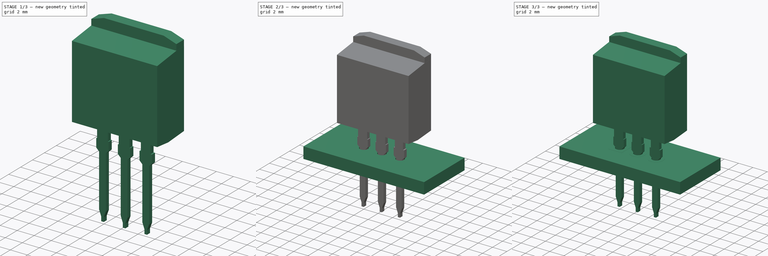
[diagram: build sequence overview — one tinted view per stage of 3, left to right]
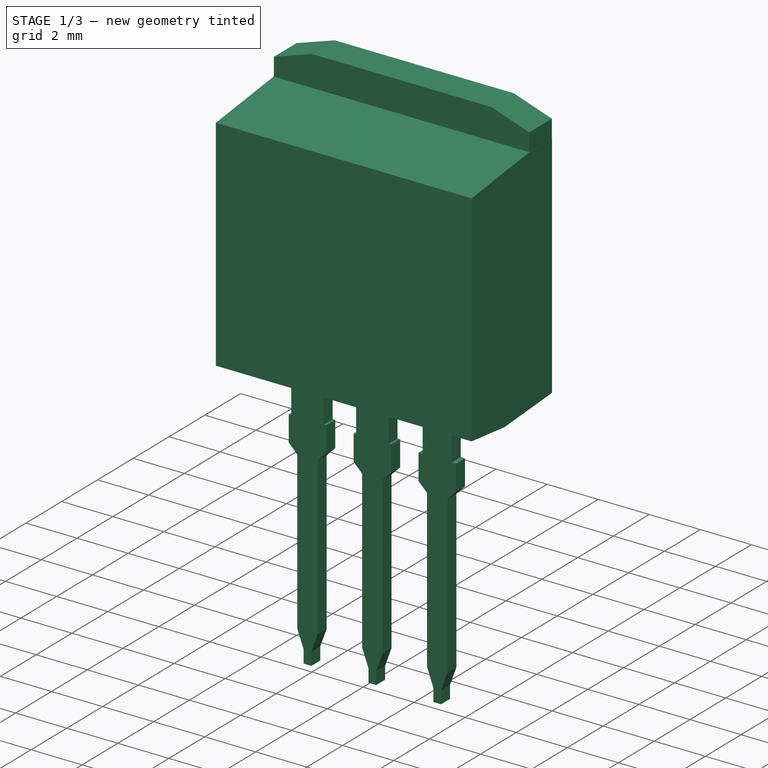
[diagram: stage 1 of 3 — iso view after this stage's code; geometry added in this stage tinted green]
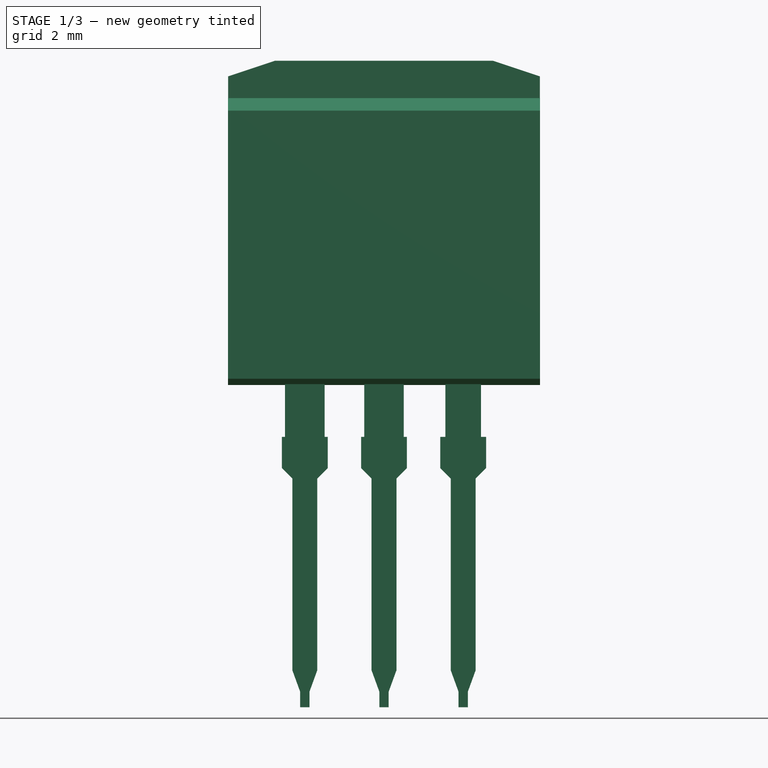
[diagram: stage 1 of 3 — front view after this stage's code; geometry added in this stage tinted green]
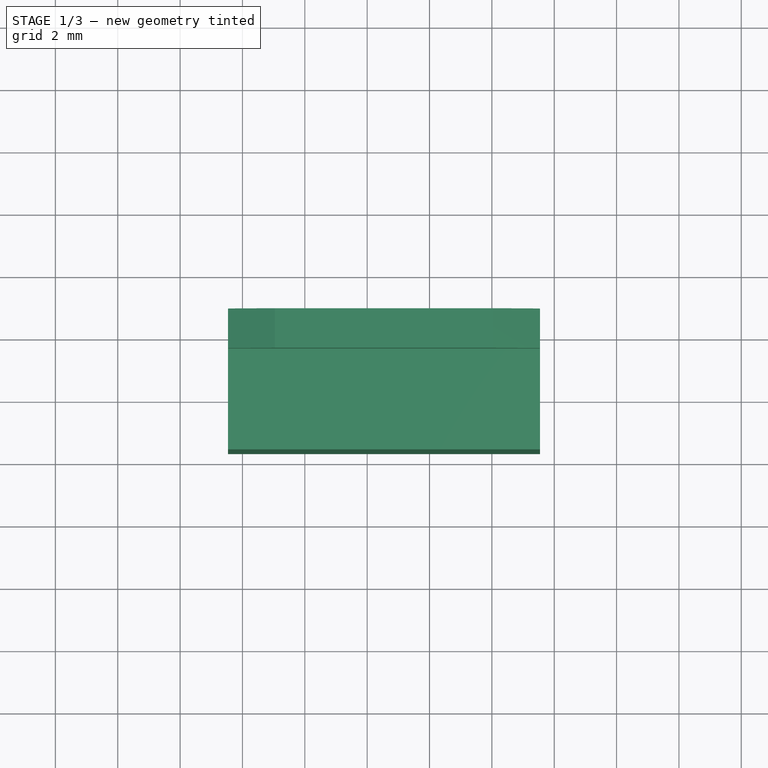
[diagram: stage 1 of 3 — top view after this stage's code; geometry added in this stage tinted green]
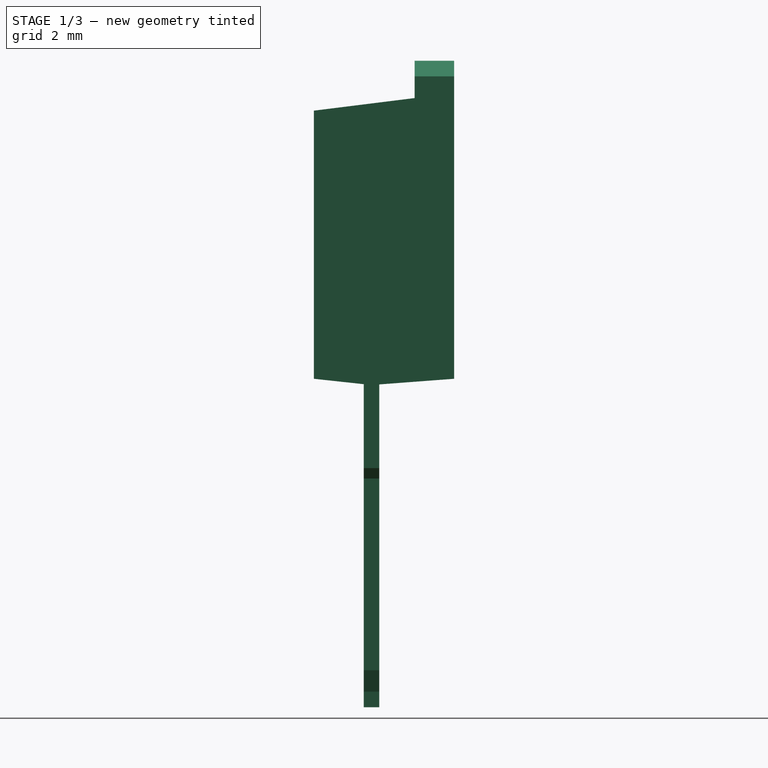
[diagram: stage 1 of 3 — right view after this stage's code; geometry added in this stage tinted green]
FCSTD DOCUMENT  (FreeCAD 0.16R6712 (Git))
Label: TO-262-3_Vertical
License: All rights reserved
LicenseURL: http://en.wikipedia.org/wiki/All_rights_reserved
objects: Part::FeaturePython×7, Sketcher::SketchObject×3, PartDesign::Pad×3, App::DocumentObjectGroup×1, Part::MultiFuse×1
note: 17 computed .brp shape members not serialized (recipe doc carries the construction recipe); baked Part::Feature solids carry a one-line shape summary decoded from their .brp

FEATURE [Sketcher::SketchObject] Sketch
  Placement = pos=(0,0,0) rot=(1,0,0;1.5708rad)
  sketch-geometry (77):
    g0: LineSegment StartX=-0.735 StartY=1.335 StartZ=0 EndX=-0.635 EndY=1.335 EndZ=0
    g1: LineSegment StartX=0.735 StartY=1.335 StartZ=0 EndX=0.735 EndY=0.335 EndZ=0
    g2: LineSegment StartX=-0.735 StartY=0.335 StartZ=0 EndX=-0.735 EndY=1.335 EndZ=0
    g3: LineSegment StartX=0.4 StartY=0 StartZ=0 EndX=0.4 EndY=-6.14813 EndZ=0
    g4: LineSegment StartX=-0.4 StartY=-6.14813 StartZ=0 EndX=-0.4 EndY=0 EndZ=0
    g5: LineSegment StartX=0.635 StartY=1.335 StartZ=0 EndX=0.635 EndY=4.335 EndZ=0
    g6: LineSegment StartX=0.635 StartY=4.335 StartZ=0 EndX=-0.635 EndY=4.335 EndZ=0
    g7: LineSegment StartX=-0.635 StartY=4.335 StartZ=0 EndX=-0.635 EndY=1.335 EndZ=0
    g8: LineSegment StartX=0.635 StartY=1.335 StartZ=0 EndX=0.735 EndY=1.335 EndZ=0
    g9: LineSegment StartX=0.15 StartY=-6.835 StartZ=0 EndX=0.15 EndY=-7.335 EndZ=0
    g10: LineSegment StartX=0.15 StartY=-7.335 StartZ=0 EndX=-0.15 EndY=-7.335 EndZ=0
    g11: LineSegment StartX=-0.15 StartY=-7.335 StartZ=0 EndX=-0.15 EndY=-6.835 EndZ=0
    g12: LineSegment StartX=-0.4 StartY=-6.14813 StartZ=0 EndX=-0.15 EndY=-6.835 EndZ=0
    g13: LineSegment StartX=0.4 StartY=-6.14813 StartZ=0 EndX=0.15 EndY=-6.835 EndZ=0
    g14: LineSegment [constr] StartX=0 StartY=-7.335 StartZ=0 EndX=0 EndY=4.335 EndZ=0
    g15: LineSegment [constr] StartX=-0.4 StartY=-6.14813 StartZ=0 EndX=0.4 EndY=-6.14813 EndZ=0
    g16: LineSegment [constr] StartX=-0.15 StartY=-6.835 StartZ=0 EndX=0.15 EndY=-6.835 EndZ=0
    g17: LineSegment [constr] StartX=-0.4 StartY=0 StartZ=0 EndX=0.4 EndY=0 EndZ=0
    g18: LineSegment [constr] StartX=-0.635 StartY=1.335 StartZ=0 EndX=0.635 EndY=1.335 EndZ=0
    g19: GeomPoint [constr] X=0 Y=1.335 Z=0
    g20: GeomPoint [constr] X=0 Y=0 Z=0
    g21: GeomPoint [constr] X=0 Y=-6.14813 Z=0
    g22: LineSegment [constr] StartX=0 StartY=-7.335 StartZ=0 EndX=2.54 EndY=-7.335 EndZ=0
    g23: LineSegment StartX=-0.735 StartY=0.335 StartZ=0 EndX=-0.4 EndY=0 EndZ=0
    g24: LineSegment StartX=0.4 StartY=0 StartZ=0 EndX=0.735 EndY=0.335 EndZ=0
    g25: LineSegment [constr] StartX=0.735 StartY=0.335 StartZ=0 EndX=-0.735 EndY=0.335 EndZ=0
    g26: LineSegment StartX=1.805 StartY=1.335 StartZ=0 EndX=1.905 EndY=1.335 EndZ=0
    g27: LineSegment StartX=3.275 StartY=1.335 StartZ=0 EndX=3.275 EndY=0.335 EndZ=0
    g28: LineSegment StartX=1.805 StartY=0.335 StartZ=0 EndX=1.805 EndY=1.335 EndZ=0
    g29: LineSegment StartX=2.94 StartY=0 StartZ=0 EndX=2.94 EndY=-6.14813 EndZ=0
    g30: LineSegment StartX=2.14 StartY=-6.14813 StartZ=0 EndX=2.14 EndY=0 EndZ=0
    g31: LineSegment StartX=3.175 StartY=1.335 StartZ=0 EndX=3.175 EndY=4.335 EndZ=0
    g32: LineSegment StartX=3.175 StartY=4.335 StartZ=0 EndX=1.905 EndY=4.335 EndZ=0
    g33: LineSegment StartX=1.905 StartY=4.335 StartZ=0 EndX=1.905 EndY=1.335 EndZ=0
    g34: LineSegment StartX=3.175 StartY=1.335 StartZ=0 EndX=3.275 EndY=1.335 EndZ=0
    g35: LineSegment StartX=2.69 StartY=-6.835 StartZ=0 EndX=2.69 EndY=-7.335 EndZ=0
    g36: LineSegment StartX=2.69 StartY=-7.335 StartZ=0 EndX=2.39 EndY=-7.335 EndZ=0
    g37: LineSegment StartX=2.39 StartY=-7.335 StartZ=0 EndX=2.39 EndY=-6.835 EndZ=0
    g38: LineSegment StartX=2.14 StartY=-6.14813 StartZ=0 EndX=2.39 EndY=-6.835 EndZ=0
    g39: LineSegment StartX=2.94 StartY=-6.14813 StartZ=0 EndX=2.69 EndY=-6.835 EndZ=0
    g40: LineSegment [constr] StartX=2.54 StartY=-7.335 StartZ=0 EndX=2.54 EndY=4.335 EndZ=0
    g41: LineSegment [constr] StartX=2.14 StartY=-6.14813 StartZ=0 EndX=2.94 EndY=-6.14813 EndZ=0
    g42: LineSegment [constr] StartX=2.39 StartY=-6.835 StartZ=0 EndX=2.69 EndY=-6.835 EndZ=0
    g43: LineSegment [constr] StartX=2.14 StartY=0 StartZ=0 EndX=2.94 EndY=0 EndZ=0
    g44: LineSegment [constr] StartX=1.905 StartY=1.335 StartZ=0 EndX=3.175 EndY=1.335 EndZ=0
    g45: GeomPoint [constr] X=2.54 Y=1.335 Z=0
    g46: GeomPoint [constr] X=2.54 Y=0 Z=0
    g47: GeomPoint [constr] X=2.54 Y=-6.14813 Z=0
    g48: LineSegment StartX=1.805 StartY=0.335 StartZ=0 EndX=2.14 EndY=0 EndZ=0
    g49: LineSegment StartX=2.94 StartY=0 StartZ=0 EndX=3.275 EndY=0.335 EndZ=0
    g50: LineSegment [constr] StartX=3.275 StartY=0.335 StartZ=0 EndX=1.805 EndY=0.335 EndZ=0
    g51: LineSegment StartX=4.345 StartY=1.335 StartZ=0 EndX=4.50975 EndY=1.335 EndZ=0
    g52: LineSegment StartX=5.815 StartY=1.335 StartZ=0 EndX=5.815 EndY=0.335 EndZ=0
    g53: LineSegment StartX=4.345 StartY=0.335 StartZ=0 EndX=4.345 EndY=1.335 EndZ=0
    g54: LineSegment StartX=5.48 StartY=0 StartZ=0 EndX=5.48 EndY=-6.14813 EndZ=0
    g55: LineSegment StartX=4.68 StartY=-6.14813 StartZ=0 EndX=4.68 EndY=0 EndZ=0
    g56: LineSegment StartX=5.65025 StartY=1.335 StartZ=0 EndX=5.65025 EndY=4.33728 EndZ=0
    g57: LineSegment StartX=5.65025 StartY=4.33728 StartZ=0 EndX=4.50975 EndY=4.33728 EndZ=0
    g58: LineSegment StartX=4.50975 StartY=4.33728 StartZ=0 EndX=4.50975 EndY=1.335 EndZ=0
    g59: LineSegment StartX=5.65025 StartY=1.335 StartZ=0 EndX=5.815 EndY=1.335 EndZ=0
    g60: LineSegment StartX=5.23 StartY=-6.835 StartZ=0 EndX=5.23 EndY=-7.335 EndZ=0
    g61: LineSegment StartX=5.23 StartY=-7.335 StartZ=0 EndX=4.93 EndY=-7.335 EndZ=0
    g62: LineSegment StartX=4.93 StartY=-7.335 StartZ=0 EndX=4.93 EndY=-6.835 EndZ=0
    g63: LineSegment StartX=4.68 StartY=-6.14813 StartZ=0 EndX=4.93 EndY=-6.835 EndZ=0
    g64: LineSegment StartX=5.48 StartY=-6.14813 StartZ=0 EndX=5.23 EndY=-6.835 EndZ=0
    g65: LineSegment [constr] StartX=5.08 StartY=-7.335 StartZ=0 EndX=5.08 EndY=4.33728 EndZ=0
    g66: LineSegment [constr] StartX=4.68 StartY=-6.14813 StartZ=0 EndX=5.48 EndY=-6.14813 EndZ=0
    g67: LineSegment [constr] StartX=4.93 StartY=-6.835 StartZ=0 EndX=5.23 EndY=-6.835 EndZ=0
    g68: LineSegment [constr] StartX=4.68 StartY=0 StartZ=0 EndX=5.48 EndY=0 EndZ=0
    g69: LineSegment [constr] StartX=4.50975 StartY=1.335 StartZ=0 EndX=5.65025 EndY=1.335 EndZ=0
    g70: GeomPoint [constr] X=5.08 Y=1.335 Z=0
    g71: GeomPoint [constr] X=5.08 Y=0 Z=0
    g72: GeomPoint [constr] X=5.08 Y=-6.14813 Z=0
    g73: LineSegment StartX=4.345 StartY=0.335 StartZ=0 EndX=4.68 EndY=0 EndZ=0
    g74: LineSegment StartX=5.48 StartY=0 StartZ=0 EndX=5.815 EndY=0.335 EndZ=0
    g75: LineSegment [constr] StartX=5.815 StartY=0.335 StartZ=0 EndX=4.345 EndY=0.335 EndZ=0
    g76: LineSegment [constr] StartX=5.08 StartY=-7.335 StartZ=0 EndX=2.54 EndY=-7.335 EndZ=0
  constraints (200):
    c: Coincident(g8,g1)
    c: Coincident(g2,g0)
    c: Horizontal(g0)
    c: Vertical(g1)
    c: Vertical(g2)
    c: Vertical(g3)
    c: Vertical(g4)
    c: Coincident(g5,g6)
    c: Coincident(g6,g7)
    c: Horizontal(g6)
    c: Vertical(g5)
    c: Vertical(g7)
    c: PointOnObject(g7,g0)
    c: PointOnObject(g0,g7)
    c: Tangent(g0,g8)
    c: Coincident(g9,g10)
    c: Coincident(g10,g11)
    c: Horizontal(g10)
    c: Vertical(g9)
    c: Vertical(g11)
    c: Coincident(g13,g3)
    c: Coincident(g4,g12)
    c: PointOnObject(g14,g10)
    c: PointOnObject(g14,g6)
    c: Symmetric(g6,g6,g14)
    c: Symmetric(g10,g10,g14)
    c: Coincident(g11,g12)
    c: Coincident(g9,g13)
    c: Coincident(g15,g4)
    c: Horizontal(g15)
    c: Coincident(g16,g11)
    c: Horizontal(g16)
    c: Coincident(g17,g4)
    c: Coincident(g18,g0)
    c: Coincident(g18,g8)
    c: Coincident(g5,g8)
    c: PointOnObject(g19,g14)
    c: PointOnObject(g20,g14)
    c: PointOnObject(g21,g14)
    c: Coincident(g9,g16)
    c: Symmetric(g15,g15,g21)
    c: Symmetric(g17,g17,g20)
    c: Symmetric(g18,g18,g19)
    c: DistanceX(g15,g15) = 0.8
    c: DistanceX(g0,g1) = 1.47
    c: Equal(g0,g8)
    c: DistanceY(g14,g-1) = 7.335
    c: DistanceY(g11,g11) = 0.5
    c: DistanceX(g10,g10) = 0.3
    c: Angle(g3,g13) = 2.79253
    c: Coincident(g15,g3)
    c: DistanceY(g2,g0) = 1
    c: DistanceY(g7,g7) = 3
    c: Coincident(g22,g14)
    c: Horizontal(g22)
    c: DistanceX(g22,g22) = 2.54
    c: Coincident(g20,g-1)
    c: DistanceX(g6,g6) = 1.27
    c: Coincident(g23,g2)
    c: Coincident(g23,g4)
    c: Coincident(g24,g3)
    c: Coincident(g24,g1)
    c: Coincident(g25,g1)
    c: Coincident(g25,g2)
    c: Horizontal(g25)
    c: Angle(g23,g4) = 2.35619
    c: Coincident(g34,g27)
    c: Coincident(g28,g26)
    c: Horizontal(g26)
    c: Vertical(g27)
    c: Vertical(g28)
    c: Vertical(g29)
    c: Vertical(g30)
    c: Coincident(g31,g32)
    c: Coincident(g32,g33)
    c: Horizontal(g32)
    c: Vertical(g31)
    c: Vertical(g33)
    c: PointOnObject(g33,g26)
    c: PointOnObject(g26,g33)
    c: Tangent(g26,g34)
    c: Coincident(g35,g36)
    c: Coincident(g36,g37)
    c: Horizontal(g36)
    c: Vertical(g35)
    c: Vertical(g37)
    c: Coincident(g39,g29)
    c: Coincident(g30,g38)
    c: PointOnObject(g40,g36)
    c: PointOnObject(g40,g32)
    c: Symmetric(g32,g32,g40)
    c: Symmetric(g36,g36,g40)
    c: Coincident(g37,g38)
    c: Coincident(g35,g39)
    c: Coincident(g41,g30)
    c: Horizontal(g41)
    c: Coincident(g42,g37)
    c: Horizontal(g42)
    c: Coincident(g43,g30)
    c: Coincident(g44,g26)
    c: Coincident(g44,g34)
    c: Coincident(g31,g34)
    c: PointOnObject(g45,g40)
    c: PointOnObject(g46,g40)
    c: PointOnObject(g47,g40)
    c: Coincident(g35,g42)
    c: Symmetric(g41,g41,g47)
    c: Symmetric(g43,g43,g46)
    c: Symmetric(g44,g44,g45)
    c: Equal(g15,g41) = 0.8
    c: DistanceX(g26,g27) = 1.47
    c: Equal(g26,g34)
    c: Equal(g11,g37) = 0.5
    c: Equal(g10,g36) = 0.3
    c: Angle(g29,g39) = 2.79253
    c: Coincident(g41,g29)
    c: DistanceY(g28,g26) = 1
    c: Equal(g7,g33) = 3
    c: Equal(g6,g32) = 1.27
    c: Coincident(g48,g28)
    c: Coincident(g48,g30)
    c: Coincident(g49,g29)
    c: Coincident(g49,g27)
    c: Coincident(g50,g27)
    c: Coincident(g50,g28)
    c: Horizontal(g50)
    c: Angle(g48,g30) = 2.35619
    c: Coincident(g40,g22)
    c: Coincident(g59,g52)
    c: Coincident(g53,g51)
    c: Horizontal(g51)
    c: Vertical(g52)
    c: Vertical(g53)
    c: Vertical(g54)
    c: Vertical(g55)
    c: Coincident(g56,g57)
    c: Coincident(g57,g58)
    c: Horizontal(g57)
    c: Vertical(g56)
    c: Vertical(g58)
    c: PointOnObject(g58,g51)
    c: PointOnObject(g51,g58)
    c: Tangent(g51,g59)
    c: Coincident(g60,g61)
    c: Coincident(g61,g62)
    c: Horizontal(g61)
    c: Vertical(g60)
    c: Vertical(g62)
    c: Coincident(g64,g54)
    c: Coincident(g55,g63)
    c: PointOnObject(g65,g61)
    c: PointOnObject(g65,g57)
    c: Symmetric(g57,g57,g65)
    c: Symmetric(g61,g61,g65)
    c: Coincident(g62,g63)
    c: Coincident(g60,g64)
    c: Coincident(g66,g55)
    c: Horizontal(g66)
    c: Coincident(g67,g62)
    c: Horizontal(g67)
    c: Coincident(g68,g55)
    c: Coincident(g69,g51)
    c: Coincident(g69,g59)
    c: Coincident(g56,g59)
    c: PointOnObject(g70,g65)
    c: PointOnObject(g71,g65)
    c: PointOnObject(g72,g65)
    c: Coincident(g60,g67)
    c: Symmetric(g66,g66,g72)
    c: Symmetric(g68,g68,g71)
    c: Symmetric(g69,g69,g70)
    c: DistanceX(g51,g52) = 1.47
    c: Equal(g51,g59)
    c: Angle(g54,g64) = 2.79253
    c: Coincident(g66,g54)
    c: DistanceY(g53,g51) = 1
    c: Coincident(g73,g53)
    c: Coincident(g73,g55)
    c: Coincident(g74,g54)
    c: Coincident(g74,g52)
    c: Coincident(g75,g52)
    c: Coincident(g75,g53)
    c: Horizontal(g75)
    c: Angle(g73,g55) = 2.35619
    c: Coincident(g76,g65)
    c: Coincident(g76,g22)
    c: Horizontal(g76)
    c: Equal(g76,g22)
    c: Horizontal(g68)
    c: Horizontal(g43)
    c: PointOnObject(g55,g-1)
    c: PointOnObject(g30,g-1)
    c: Coincident(g17,g3)
    c: Horizontal(g17)
    c: Equal(g67,g42)
    c: Equal(g42,g16)
    c: Equal(g62,g37)
    c: Equal(g63,g38)
    c: Coincident(g29,g43)
    c: Coincident(g54,g68)
FEATURE [PartDesign::Pad] Pad
  Length = 0.5
  Length2 = 100
  Midplane = true
  Placement = pos=(0,0,0) rot=(1,0,0;1.5708rad)
  Reversed = true
  Sketch = -> Sketch
  Type = 0
FEATURE [Sketcher::SketchObject] Sketch001
  Placement = pos=(2.54,0,0) rot=(0.57735,0.57735,0.57735;2.0944rad)
  sketch-geometry (7):
    g0: LineSegment StartX=0 StartY=3 StartZ=0 EndX=-1.85 EndY=3.2 EndZ=0
    g1: LineSegment StartX=-1.85 StartY=3.2 StartZ=0 EndX=-1.85 EndY=11.8 EndZ=0
    g2: LineSegment StartX=-1.85 StartY=11.8 StartZ=0 EndX=1.35 EndY=12.2 EndZ=0
    g3: LineSegment StartX=1.35 StartY=12.2 StartZ=0 EndX=2.65 EndY=12.2 EndZ=0
    g4: LineSegment StartX=2.65 StartY=12.2 StartZ=0 EndX=2.65 EndY=3.2 EndZ=0
    g5: LineSegment StartX=2.65 StartY=3.2 StartZ=0 EndX=0 EndY=3 EndZ=0
    g6: LineSegment [constr] StartX=-1.85 StartY=3.2 StartZ=0 EndX=2.65 EndY=3.2 EndZ=0
  constraints (20):
    c: PointOnObject(g0,g-2)
    c: Coincident(g1,g0)
    c: Vertical(g1)
    c: Coincident(g2,g1)
    c: Horizontal(g3)
    c: Coincident(g4,g3)
    c: Vertical(g4)
    c: Coincident(g5,g4)
    c: Coincident(g5,g0)
    c: Coincident(g6,g0)
    c: Coincident(g6,g4)
    c: Horizontal(g6)
    c: DistanceX(g0,g4) = 2.65
    c: DistanceX(g1,g3) = 4.5
    c: DistanceY(g0,g4) = 0.2
    c: DistanceY(g0,g3) = 9.2
    c: Coincident(g2,g3)
    c: DistanceY(g-1,g0) = 3
    c: DistanceX(g3,g3) = 1.3
    c: DistanceY(g1,g2) = 0.4
FEATURE [PartDesign::Pad] Pad001
  Length = 10.01
  Length2 = 100
  Midplane = true
  Placement = pos=(2.54,0,0) rot=(0.57735,0.57735,0.57735;2.0944rad)
  Sketch = -> Sketch001
  Type = 0
FEATURE [Sketcher::SketchObject] Sketch002
  Placement = pos=(0,2.651,0) rot=(1,0,0;1.5708rad)
  sketch-geometry (7):
    g0: LineSegment StartX=7.54 StartY=12.9 StartZ=0 EndX=7.54 EndY=5 EndZ=0
    g1: LineSegment StartX=7.54 StartY=5 StartZ=0 EndX=-2.46 EndY=5 EndZ=0
    g2: LineSegment StartX=-2.46 StartY=5 StartZ=0 EndX=-2.46 EndY=12.9 EndZ=0
    g3: LineSegment StartX=-2.46 StartY=12.9 StartZ=0 EndX=-0.96 EndY=13.4 EndZ=0
    g4: LineSegment StartX=-0.96 StartY=13.4 StartZ=0 EndX=6.04 EndY=13.4 EndZ=0
    g5: LineSegment StartX=6.04 StartY=13.4 StartZ=0 EndX=7.54 EndY=12.9 EndZ=0
    g6: GeomPoint [constr] X=2.54 Y=13.4 Z=0
  constraints (20):
    c: Coincident(g0,g1)
    c: Coincident(g1,g2)
    c: Horizontal(g1)
    c: Vertical(g0)
    c: Vertical(g2)
    c: DistanceX(g2,g0) = 10
    c: DistanceY(g0,g0) = 7.9
    c: Coincident(g3,g2)
    c: Coincident(g4,g3)
    c: Horizontal(g4)
    c: Coincident(g5,g4)
    c: Coincident(g5,g0)
    c: Equal(g5,g3)
    c: DistanceY(g-1,g3) = 13.4
    c: DistanceX(g4,g4) = 7
    c: Equal(g2,g0)
    c: DistanceY(g2,g3) = 0.5
    c: PointOnObject(g6,g4)
    c: Symmetric(g4,g4,g6)
    c: DistanceX(g-1,g6) = 2.54
FEATURE [PartDesign::Pad] Pad002
  Length = 1.27
  Length2 = 100
  Placement = pos=(0,2.651,0) rot=(1,0,0;1.5708rad)
  Sketch = -> Sketch002
  Type = 0
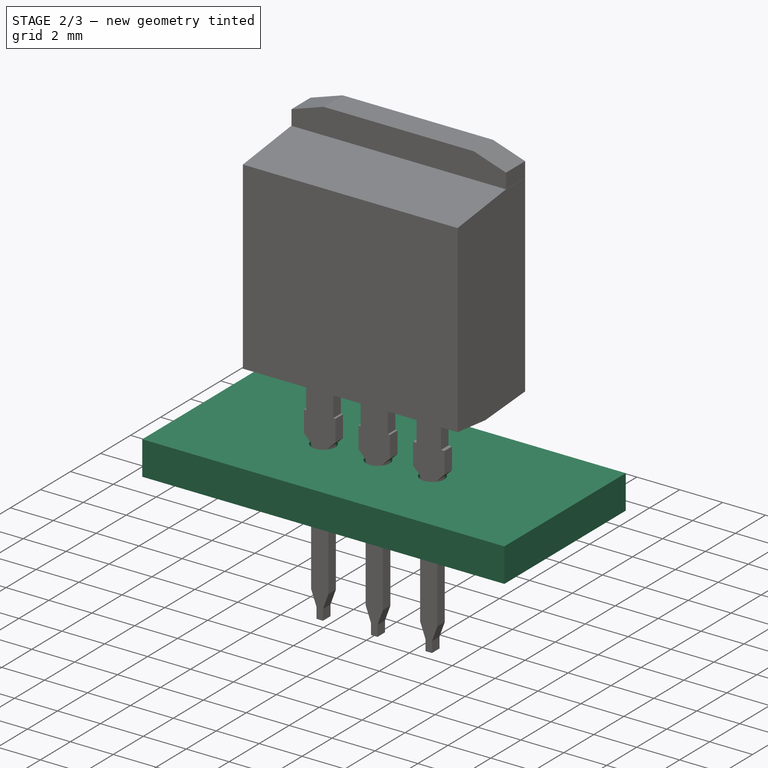
[diagram: stage 2 of 3 — iso view after this stage's code; geometry added in this stage tinted green]
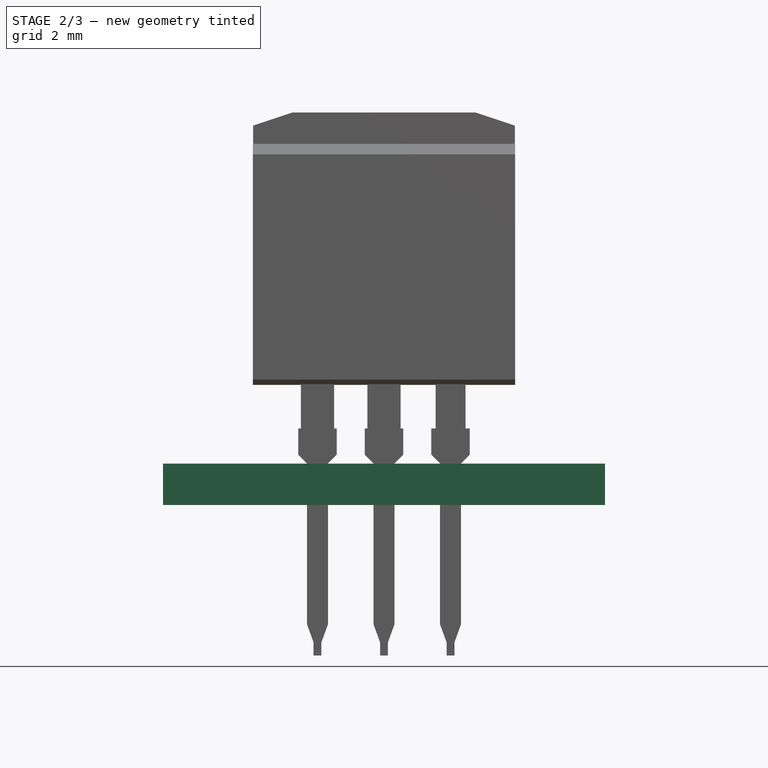
[diagram: stage 2 of 3 — front view after this stage's code; geometry added in this stage tinted green]
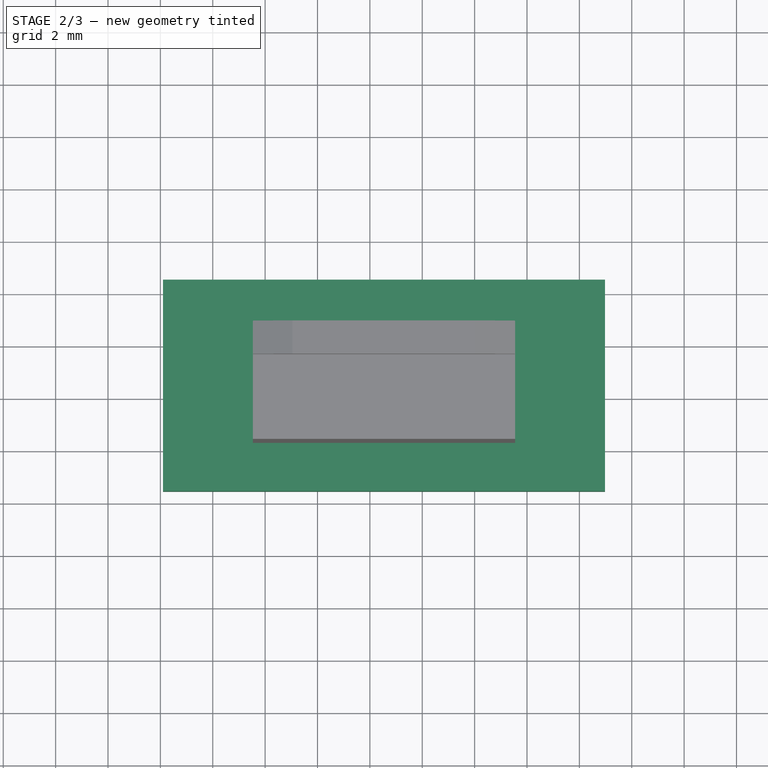
[diagram: stage 2 of 3 — top view after this stage's code; geometry added in this stage tinted green]
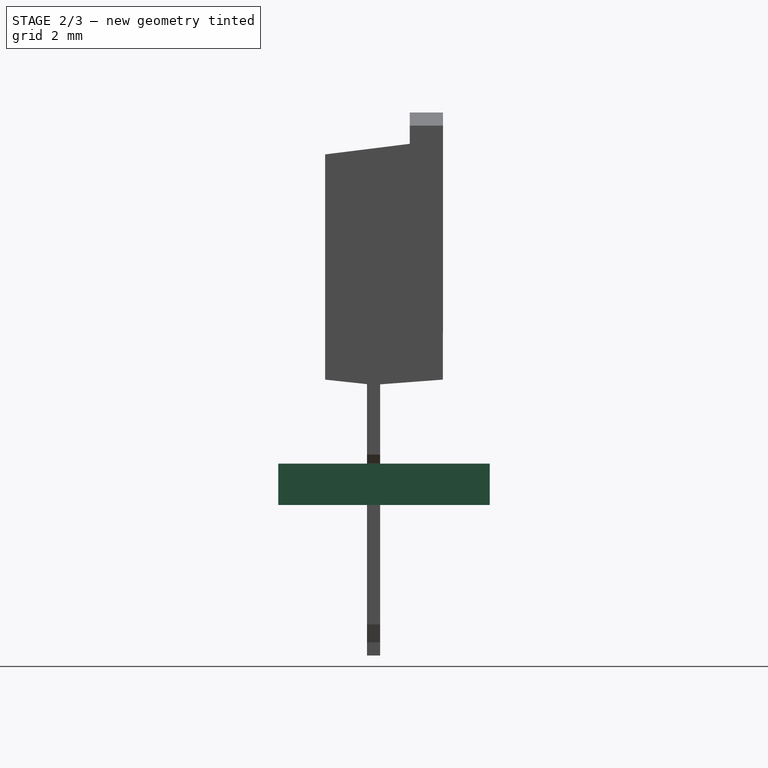
[diagram: stage 2 of 3 — right view after this stage's code; geometry added in this stage tinted green]
FEATURE [Part::FeaturePython] newPCB  label="Pcb"  # a2plus imported part (geometry in sourceFile) (typed FeaturePython)
  fixedPosition = true
FEATURE [App::DocumentObjectGroup] TO_262_3_Vertical_fp
  Group = -> [FCrtYd_lines,FFab_lines,Filk_lines,TopPads,BotPads,THPs,newPCB]
FEATURE [Part::MultiFuse] Pad001_mp_cp  label="TO-262-3_Vertical"
  Shapes = -> [Pad001,Pad,Pad002]
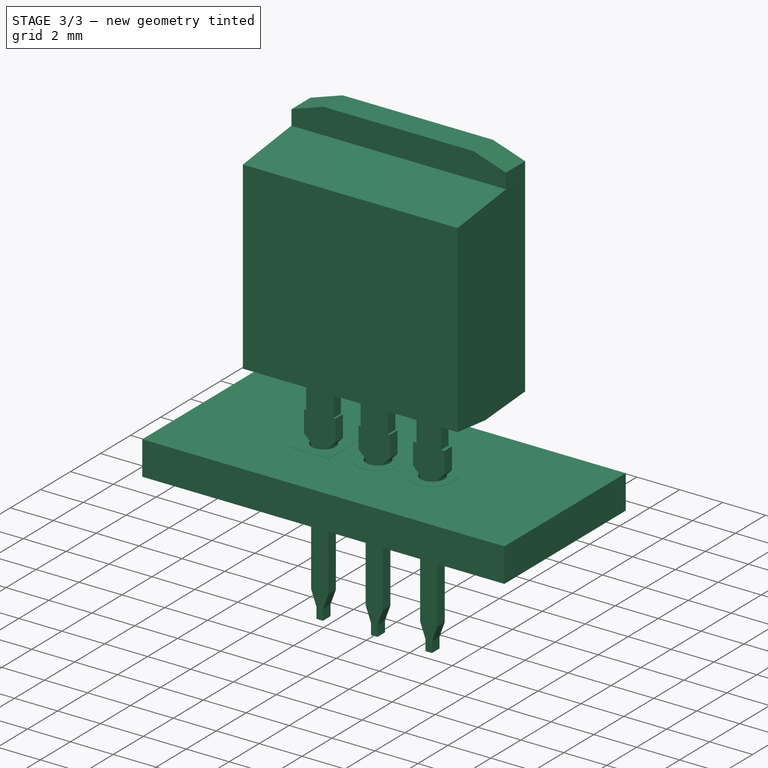
[diagram: stage 3 of 3 — iso view after this stage's code; geometry added in this stage tinted green]
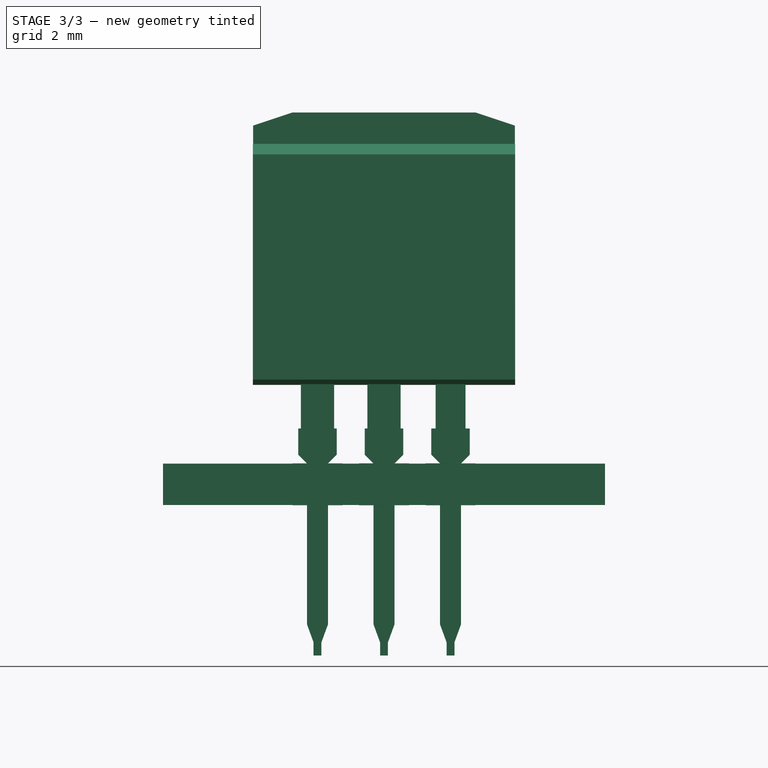
[diagram: stage 3 of 3 — front view after this stage's code; geometry added in this stage tinted green]
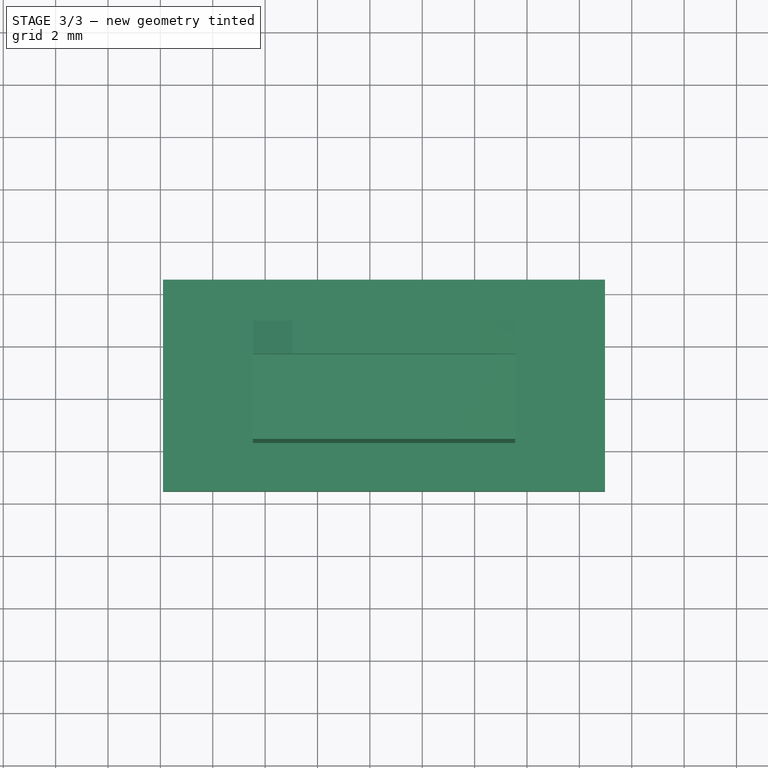
[diagram: stage 3 of 3 — top view after this stage's code; geometry added in this stage tinted green]
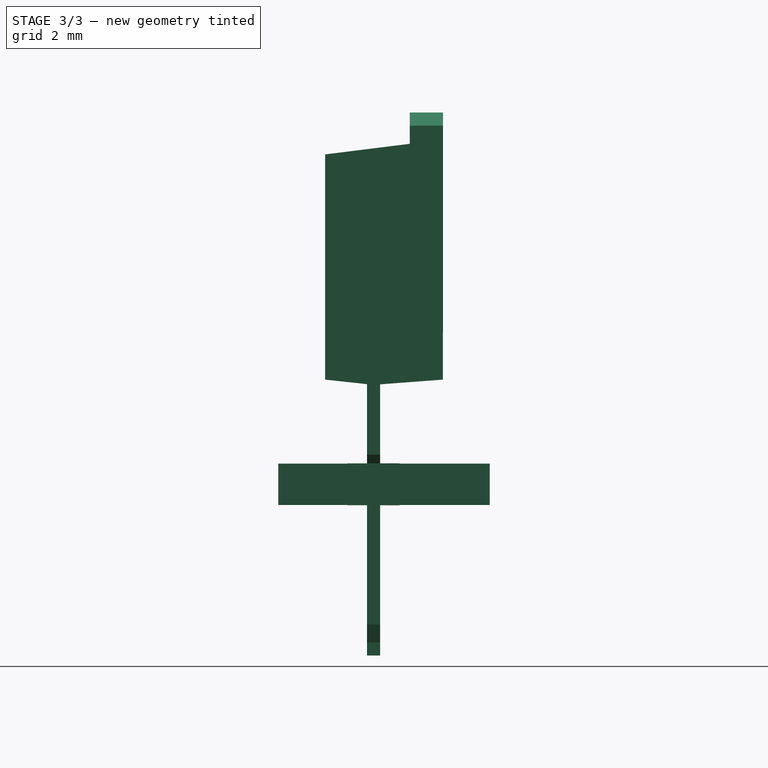
[diagram: stage 3 of 3 — right view after this stage's code; geometry added in this stage tinted green]
FEATURE [Part::FeaturePython] FCrtYd_lines  label="FCrtYd"  # a2plus imported part (geometry in sourceFile) (typed FeaturePython)
  fixedPosition = true
FEATURE [Part::FeaturePython] FFab_lines  label="FFab"  # a2plus imported part (geometry in sourceFile) (typed FeaturePython)
  fixedPosition = true
FEATURE [Part::FeaturePython] Filk_lines  label="FrontSilk"  # a2plus imported part (geometry in sourceFile) (typed FeaturePython)
  fixedPosition = true
FEATURE [Part::FeaturePython] TopPads  # a2plus imported part (geometry in sourceFile) (typed FeaturePython)
  fixedPosition = true
FEATURE [Part::FeaturePython] BotPads  # a2plus imported part (geometry in sourceFile) (typed FeaturePython)
  fixedPosition = true
FEATURE [Part::FeaturePython] THPs  label="PTHs"  # a2plus imported part (geometry in sourceFile) (typed FeaturePython)
  fixedPosition = true
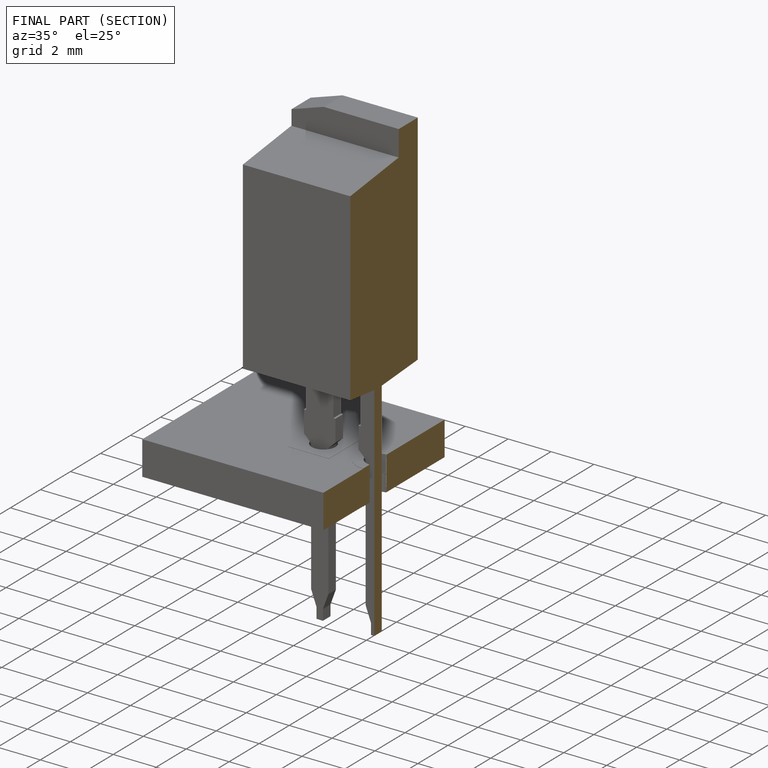
[diagram: finished part — half-section view (interior)]
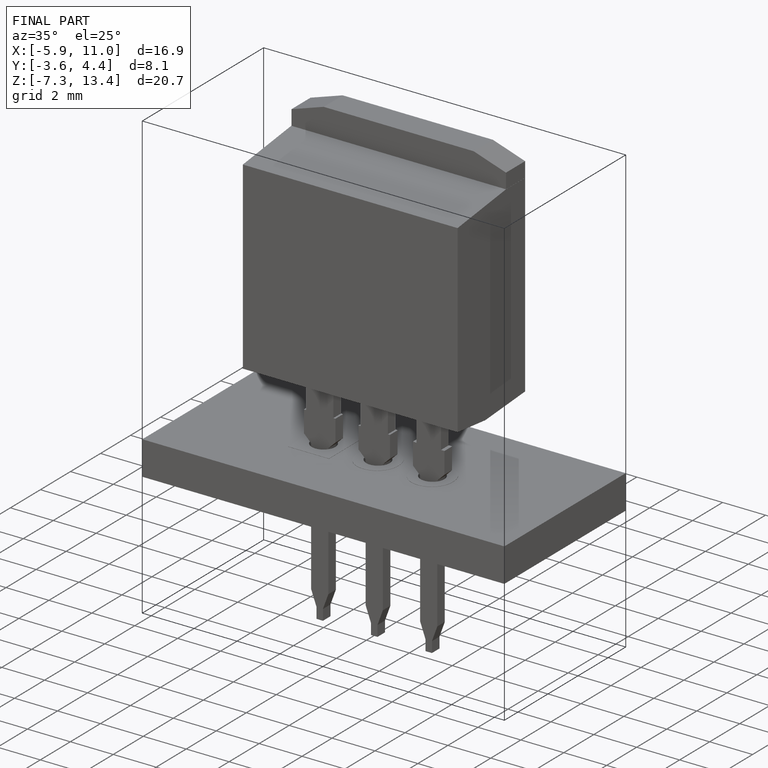
[diagram: finished part — iso view with bounding-box wireframe]
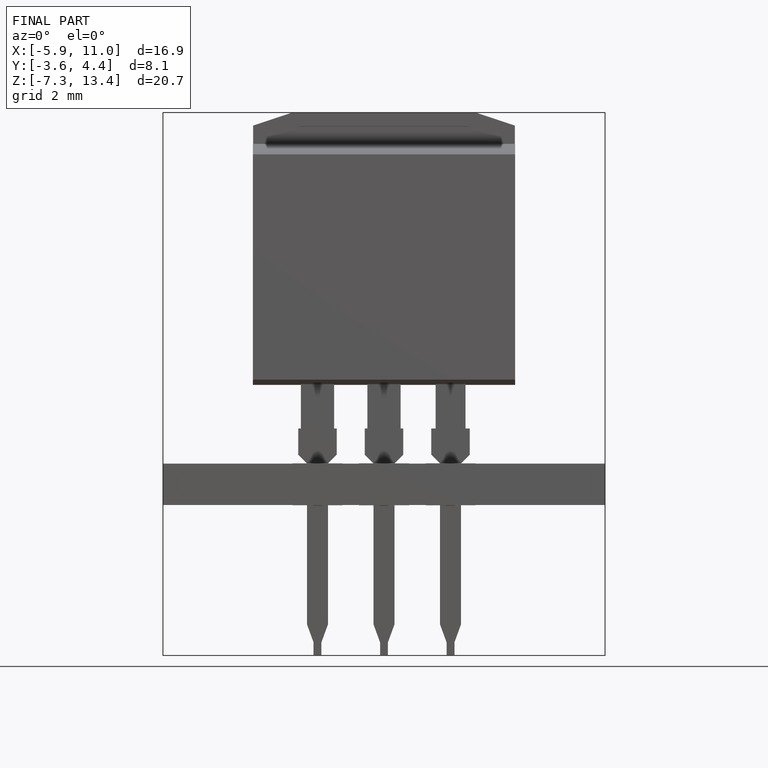
[diagram: finished part — front view with bounding-box wireframe]
